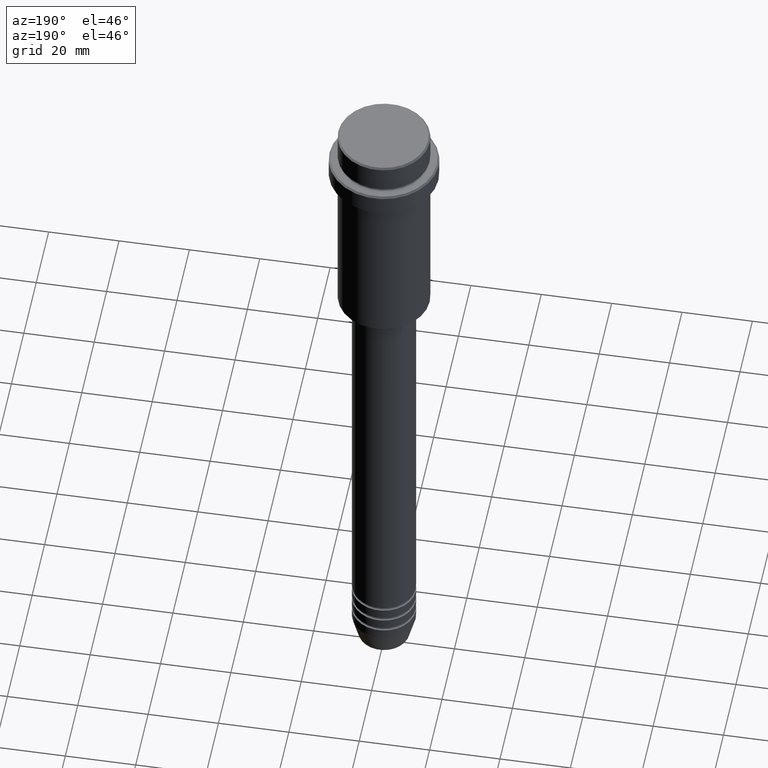
[diagram: clean part render]
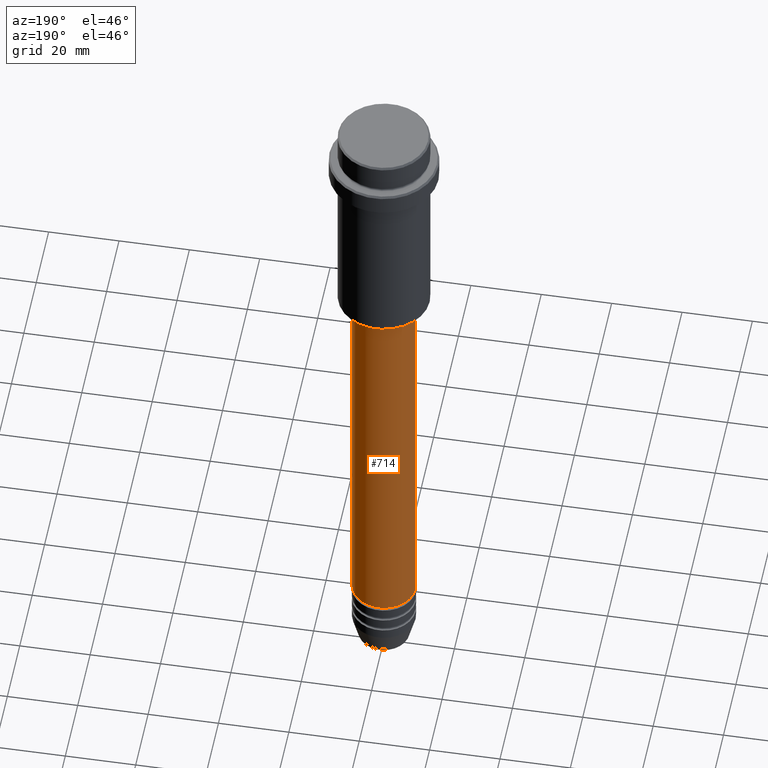
[diagram: same view with one face highlighted and labeled with its STEP entity id]
A machine part, auxiliary view. The second image highlights one B-rep face of the part: STEP entity #714.
In plain terms, the highlighted cylindrical surface (edge-blend (fillet) strip) has radius 9 mm, axis along (-0, -0, 1).
Its self-contained STEP definition (entity closure, byte-faithful):
#29 = EDGE_LOOP ( 'NONE', ( #1082, #1065, #319, #470 ) ) ;
#39 = DIRECTION ( 'NONE',  ( -0.000000000000000000, -0.000000000000000000, 1.000000000000000000 ) ) ;
#112 = CARTESIAN_POINT ( 'NONE',  ( 0.000000000000000000, 0.000000000000000000, 0.000000000000000000 ) ) ;
#162 = VECTOR ( 'NONE', #1054, 1000.000000000000000 ) ;
#319 = ORIENTED_EDGE ( 'NONE', *, *, #997, .F. ) ;
#372 = CIRCLE ( 'NONE', #965, 9.000000000000001776 ) ;
#396 = CIRCLE ( 'NONE', #1151, 9.000000000000000000 ) ;
#422 = CARTESIAN_POINT ( 'NONE',  ( 0.000000000000000000, 0.000000000000000000, -66.00000000000000000 ) ) ;
#470 = ORIENTED_EDGE ( 'NONE', *, *, #1014, .F. ) ;
#510 = VERTEX_POINT ( 'NONE', #514 ) ;
#514 = CARTESIAN_POINT ( 'NONE',  ( 9.000000000000001776, 0.000000000000000000, -66.00000000000000000 ) ) ;
#519 = DIRECTION ( 'NONE',  ( 1.000000000000000000, 0.000000000000000000, 0.000000000000000000 ) ) ;
#573 = DIRECTION ( 'NONE',  ( 1.000000000000000000, 0.000000000000000000, 0.000000000000000000 ) ) ;
#658 = LINE ( 'NONE', #1184, #1337 ) ;
#714 = ADVANCED_FACE ( 'NONE', ( #1090 ), #1326, .T. ) ;
#750 = CARTESIAN_POINT ( 'NONE',  ( 9.000000000000001776, 0.000000000000000000, 0.000000000000000000 ) ) ;
#768 = VERTEX_POINT ( 'NONE', #886 ) ;
#772 = CARTESIAN_POINT ( 'NONE',  ( 9.000000000000000000, 0.000000000000000000, -180.9999999999999147 ) ) ;
#855 = CARTESIAN_POINT ( 'NONE',  ( -9.000000000000000000, 1.102182119232617714E-15, -180.9999999999999147 ) ) ;
#886 = CARTESIAN_POINT ( 'NONE',  ( -9.000000000000001776, 1.102182119232617911E-15, -66.00000000000000000 ) ) ;
#951 = LINE ( 'NONE', #750, #162 ) ;
#962 = DIRECTION ( 'NONE',  ( -0.000000000000000000, -0.000000000000000000, 1.000000000000000000 ) ) ;
#965 = AXIS2_PLACEMENT_3D ( 'NONE', #422, #1058, #519 ) ;
#997 = EDGE_CURVE ( 'NONE', #510, #768, #372, .T. ) ;
#1002 = AXIS2_PLACEMENT_3D ( 'NONE', #112, #1214, #573 ) ;
#1014 = EDGE_CURVE ( 'NONE', #1180, #510, #951, .T. ) ;
#1035 = DIRECTION ( 'NONE',  ( 1.000000000000000000, 0.000000000000000000, 0.000000000000000000 ) ) ;
#1041 = VERTEX_POINT ( 'NONE', #855 ) ;
#1054 = DIRECTION ( 'NONE',  ( -0.000000000000000000, -0.000000000000000000, 1.000000000000000000 ) ) ;
#1058 = DIRECTION ( 'NONE',  ( -0.000000000000000000, -0.000000000000000000, 1.000000000000000000 ) ) ;
#1065 = ORIENTED_EDGE ( 'NONE', *, *, #1392, .T. ) ;
#1082 = ORIENTED_EDGE ( 'NONE', *, *, #1279, .T. ) ;
#1090 = FACE_OUTER_BOUND ( 'NONE', #29, .T. ) ;
#1131 = CARTESIAN_POINT ( 'NONE',  ( 0.000000000000000000, 0.000000000000000000, -180.9999999999999147 ) ) ;
#1151 = AXIS2_PLACEMENT_3D ( 'NONE', #1131, #39, #1035 ) ;
#1180 = VERTEX_POINT ( 'NONE', #772 ) ;
#1184 = CARTESIAN_POINT ( 'NONE',  ( -9.000000000000001776, 1.102182119232617911E-15, 0.000000000000000000 ) ) ;
#1214 = DIRECTION ( 'NONE',  ( -0.000000000000000000, -0.000000000000000000, 1.000000000000000000 ) ) ;
#1279 = EDGE_CURVE ( 'NONE', #1180, #1041, #396, .T. ) ;
#1326 = CYLINDRICAL_SURFACE ( 'NONE', #1002, 9.000000000000001776 ) ;
#1337 = VECTOR ( 'NONE', #962, 1000.000000000000000 ) ;
#1392 = EDGE_CURVE ( 'NONE', #1041, #768, #658, .T. ) ;